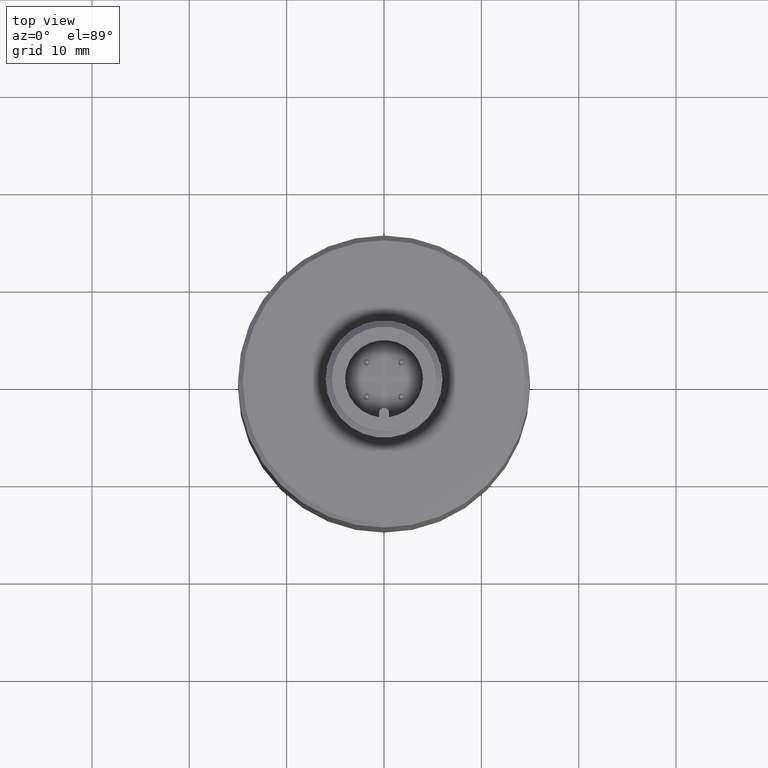
[diagram: clean part render]
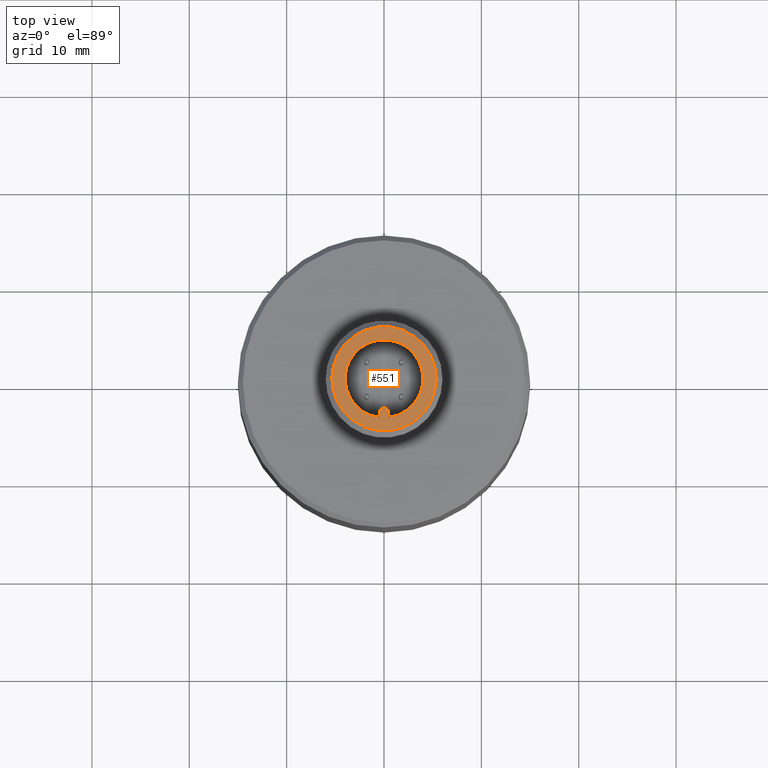
[diagram: same view with one face highlighted and labeled with its STEP entity id]
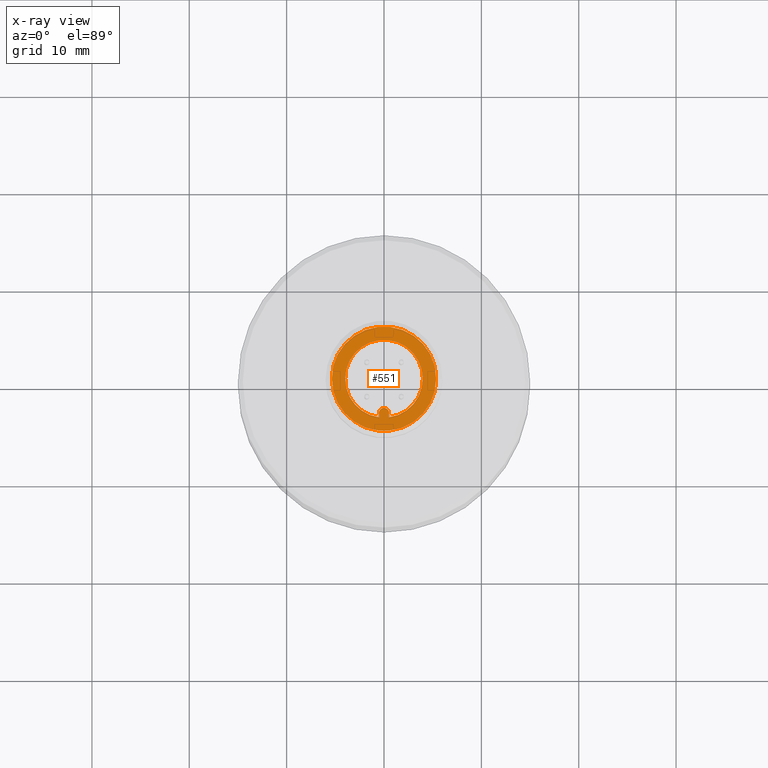
[diagram: x-ray of the same camera — body ghosted, the highlighted face saturated]
A machine part, top view. The second image highlights one B-rep face of the part: STEP entity #551.
The next image is the same camera in x-ray: the body ghosted, the highlighted face saturated — about 0% of this face is hidden behind the body in this view.
In plain terms, the highlighted planar face has unit normal (0, 0, 1).
Its self-contained STEP definition (entity closure, byte-faithful):
#395=CARTESIAN_POINT('POINT622',(4.0E+000,4.89842541528951E-016,6.2E+001
   ));
#396=VERTEX_POINT('VERTEX622',#395);
#404=CARTESIAN_POINT('POINT623',(5.0E-001,-3.96862696659689E+000,
   6.2E+001));
#405=VERTEX_POINT('VERTEX623',#404);
#412=CARTESIAN_POINT('POS965',(0.0E+000,0.0E+000,6.2E+001));
#413=DIRECTION('DIR1426',(0.0E+000,0.0E+000,-1.0E+000));
#414=DIRECTION('DIR1427',(1.0E+000,0.0E+000,0.0E+000));
#415=AXIS2_PLACEMENT_3D('AXIS462',#412,#413,#414);
#416=CIRCLE('ELLIPSE222',#415,4.0E+000);
#417=EDGE_CURVE('EDGE951',#396,#405,#416,.T.);
#428=CARTESIAN_POINT('POINT624',(-4.0E+000,-4.89842541528951E-016,
   6.2E+001));
#429=VERTEX_POINT('VERTEX624',#428);
#430=EDGE_CURVE('EDGE952',#429,#396,#416,.T.);
#443=CARTESIAN_POINT('POINT625',(-5.0E-001,-3.96862696659689E+000,
   6.2E+001));
#444=VERTEX_POINT('VERTEX625',#443);
#445=EDGE_CURVE('EDGE954',#444,#429,#416,.T.);
#458=CARTESIAN_POINT('POINT626',(-5.0E-001,-3.5E+000,6.2E+001));
#459=VERTEX_POINT('VERTEX626',#458);
#460=CARTESIAN_POINT('POS969',(-5.0E-001,-3.5E+000,6.2E+001));
#461=DIRECTION('DIR1432',(0.0E+000,1.0E+000,0.0E+000));
#462=VECTOR('VEC506',#461,1.0E+000);
#463=LINE('STRAIGHT506',#460,#462);
#464=EDGE_CURVE('EDGE956',#444,#459,#463,.T.);
#481=CARTESIAN_POINT('POINT627',(5.0E-001,-3.5E+000,6.2E+001));
#482=VERTEX_POINT('VERTEX627',#481);
#483=CARTESIAN_POINT('POS972',(-2.22044604925031E-016,-3.5E+000,6.2E+001
   ));
#484=DIRECTION('DIR1436',(0.0E+000,0.0E+000,-1.0E+000));
#485=DIRECTION('DIR1437',(1.0E+000,-6.66133814775094E-016,0.0E+000));
#486=AXIS2_PLACEMENT_3D('AXIS465',#483,#484,#485);
#487=CIRCLE('ELLIPSE223',#486,5.0E-001);
#488=EDGE_CURVE('EDGE958',#459,#482,#487,.T.);
#509=CARTESIAN_POINT('POS975',(5.0E-001,-4.0E+000,6.2E+001));
#510=DIRECTION('DIR1441',(0.0E+000,-1.0E+000,0.0E+000));
#511=VECTOR('VEC509',#510,1.0E+000);
#512=LINE('STRAIGHT509',#509,#511);
#513=EDGE_CURVE('EDGE960',#482,#405,#512,.T.);
#523=CARTESIAN_POINT('POINT628',(5.3585E+000,9.79685083057902E-016,
   6.2E+001));
#524=VERTEX_POINT('VERTEX628',#523);
#525=CARTESIAN_POINT('POINT629',(-5.3585E+000,-6.56205314695721E-016,
   6.2E+001));
#526=VERTEX_POINT('VERTEX629',#525);
#527=CARTESIAN_POINT('POS977',(0.0E+000,0.0E+000,6.2E+001));
#528=DIRECTION('DIR1444',(0.0E+000,0.0E+000,-1.0E+000));
#529=DIRECTION('DIR1445',(1.0E+000,0.0E+000,0.0E+000));
#530=AXIS2_PLACEMENT_3D('AXIS468',#527,#528,#529);
#531=CIRCLE('ELLIPSE224',#530,5.3585E+000);
#532=EDGE_CURVE('EDGE961',#524,#526,#531,.T.);
#533=ORIENTED_EDGE('COEDGE1915',*,*,#532,.F.);
#534=EDGE_CURVE('EDGE962',#526,#524,#531,.T.);
#535=ORIENTED_EDGE('COEDGE1916',*,*,#534,.F.);
#536=EDGE_LOOP('NONE',(#533,#535));
#537=FACE_BOUND('LOOP1',#536,.T.);
#538=ORIENTED_EDGE('COEDGE1917',*,*,#513,.F.);
#539=ORIENTED_EDGE('COEDGE1918',*,*,#488,.F.);
#540=ORIENTED_EDGE('COEDGE1919',*,*,#464,.F.);
#541=ORIENTED_EDGE('COEDGE1920',*,*,#445,.T.);
#542=ORIENTED_EDGE('COEDGE1921',*,*,#430,.T.);
#543=ORIENTED_EDGE('COEDGE1922',*,*,#417,.T.);
#544=EDGE_LOOP('NONE',(#538,#539,#540,#541,#542,#543));
#545=FACE_BOUND('LOOP1',#544,.T.);
#546=CARTESIAN_POINT('POS978',(2.67925E+000,9.79685083057902E-016,
   6.2E+001));
#547=DIRECTION('DIR1446',(0.0E+000,0.0E+000,1.0E+000));
#548=DIRECTION('DIR1447',(1.0E+000,0.0E+000,0.0E+000));
#549=AXIS2_PLACEMENT_3D('AXIS469',#546,#547,#548);
#550=PLANE('PLANE151',#549);
#551=ADVANCED_FACE('FACE364',(#537,#545),#550,.T.);